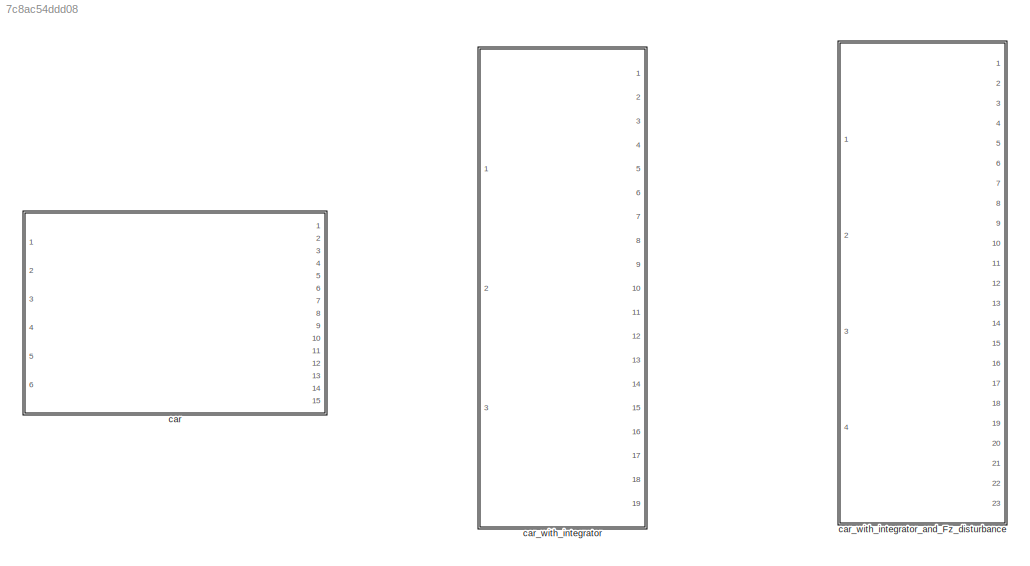
MODEL slx_7c8ac54ddd08
KIND library
CONFIG AbsTol = auto
CONFIG EnableMultiTasking = off
CONFIG FixedStep = auto
CONFIG MaxStep = auto
CONFIG MinStep = auto
CONFIG RelTol = 1e-3
CONFIG SampleTimeConstraint = Unconstrained
CONFIG Solver = VariableStepAuto
CONFIG SolverName = VariableStepAuto
CONFIG StartTime = 0.0
CONFIG StopTime = 10.0
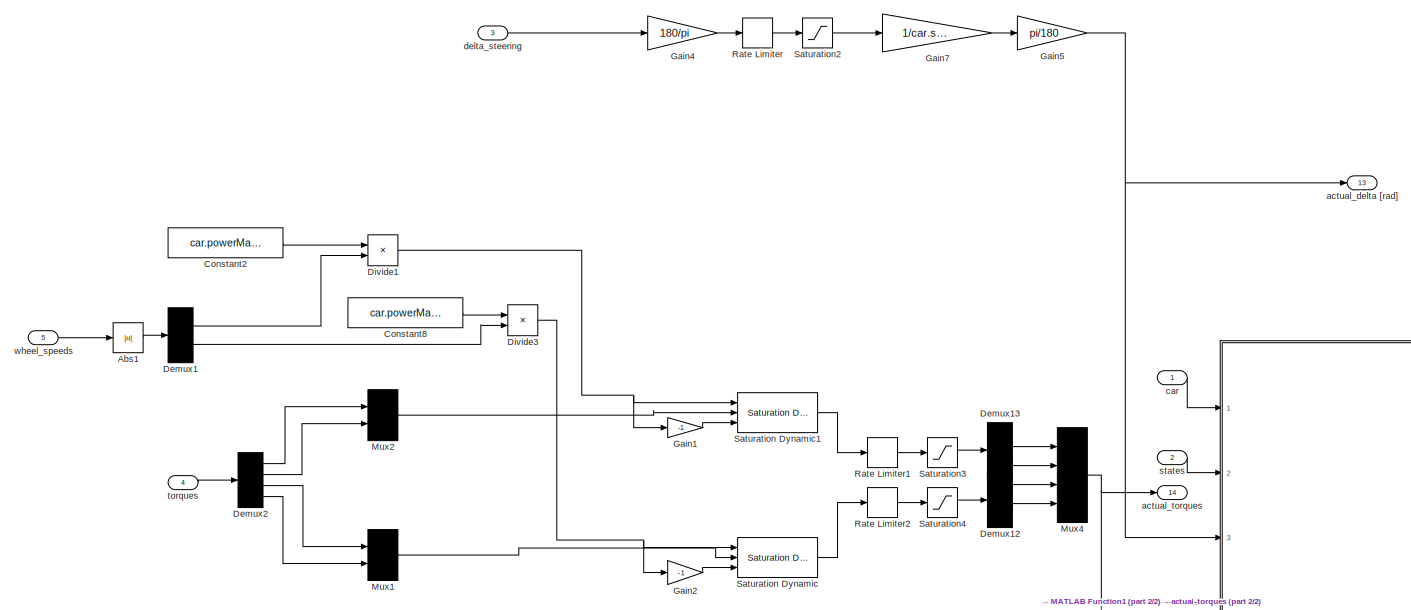
[diagram: car - part 1/2, center side, full height]
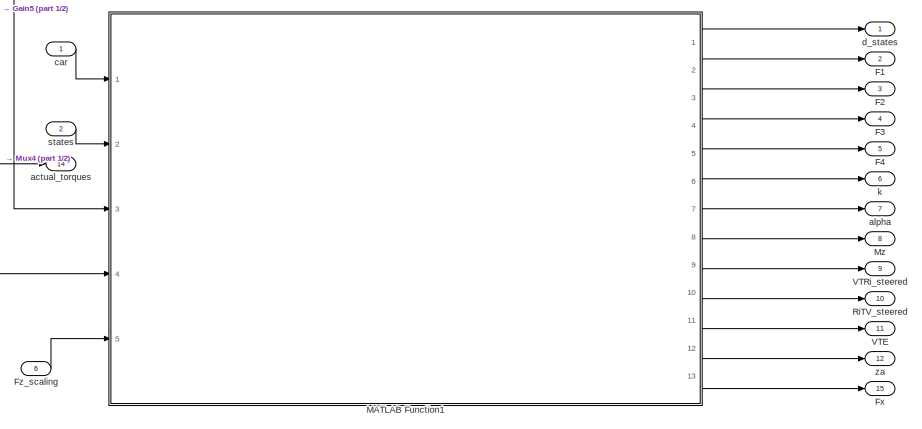
[diagram: car - part 2/2, bottom right region]
BLOCK [SubSystem] car
  Ports = [6, 15]
  RequestExecContextInheritance = off
BLOCK [Abs] car/Abs1
  SaturateOnIntegerOverflow = off
BLOCK [Constant] car/Constant2
  Value = car.powerMaxF
BLOCK [Constant] car/Constant8
  Value = car.powerMaxR
BLOCK [Demux] car/Demux1
  DisplayOption = bar
  Outputs = 2
  Ports = [1, 2]
BLOCK [Demux] car/Demux12
  DisplayOption = bar
  Outputs = 2
  Ports = [1, 2]
BLOCK [Demux] car/Demux13
  DisplayOption = bar
  Outputs = 2
  Ports = [1, 2]
BLOCK [Demux] car/Demux2
  DisplayOption = bar
  Ports = [1, 4]
BLOCK [Product] car/Divide1
  InputSameDT = off
  Inputs = */
  OutDataTypeStr = Inherit: Inherit via internal rule
  Ports = [2, 1]
  RndMeth = Floor
  SaturateOnIntegerOverflow = off
BLOCK [Product] car/Divide3
  InputSameDT = off
  Inputs = */
  OutDataTypeStr = Inherit: Inherit via internal rule
  Ports = [2, 1]
  RndMeth = Floor
  SaturateOnIntegerOverflow = off
BLOCK [Outport] car/F1
  IconDisplay = Port number
  Port = 2
  VectorParamsAs1DForOutWhenUnconnected = off
BLOCK [Outport] car/F2
  IconDisplay = Port number
  Port = 3
  VectorParamsAs1DForOutWhenUnconnected = off
BLOCK [Outport] car/F3
  IconDisplay = Port number
  Port = 4
  VectorParamsAs1DForOutWhenUnconnected = off
BLOCK [Outport] car/F4
  IconDisplay = Port number
  Port = 5
  VectorParamsAs1DForOutWhenUnconnected = off
BLOCK [Outport] car/Fx
  IconDisplay = Port number
  Port = 15
  VectorParamsAs1DForOutWhenUnconnected = off
BLOCK [Inport] car/Fz_scaling
  IconDisplay = Port number
  Port = 6
BLOCK [Gain] car/Gain1
  Gain = -1
  OutDataTypeStr = Inherit: Inherit via internal rule
  ParamDataTypeStr = Inherit: Inherit via internal rule
  SaturateOnIntegerOverflow = off
BLOCK [Gain] car/Gain2
  Gain = -1
  OutDataTypeStr = Inherit: Inherit via internal rule
  ParamDataTypeStr = Inherit: Inherit via internal rule
  SaturateOnIntegerOverflow = off
BLOCK [Gain] car/Gain4
  Gain = 180/pi
  OutDataTypeStr = Inherit: Inherit via internal rule
  ParamDataTypeStr = Inherit: Inherit via internal rule
  SaturateOnIntegerOverflow = off
BLOCK [Gain] car/Gain5
  Gain = pi/180
  OutDataTypeStr = Inherit: Inherit via internal rule
  ParamDataTypeStr = Inherit: Inherit via internal rule
  SaturateOnIntegerOverflow = off
BLOCK [Gain] car/Gain7
  Gain = 1/car.steerGain
  OutDataTypeStr = Inherit: Inherit via internal rule
  ParamDataTypeStr = Inherit: Inherit via internal rule
  SaturateOnIntegerOverflow = off
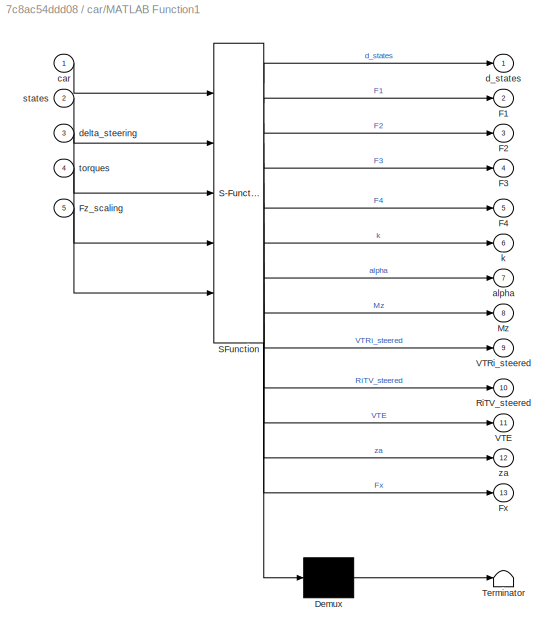
BLOCK [SubSystem] car/MATLAB Function1
  ErrorFcn = Stateflow.Translate.translate
  PermitHierarchicalResolution = ExplicitOnly
  Ports = [5, 13]
  RequestExecContextInheritance = off
  SFBlockType = MATLAB Function
  TreatAsAtomicUnit = on
BLOCK [Demux] car/MATLAB Function1/ Demux 
  Outputs = 1
  Ports = [1, 1]
BLOCK [S-Function] car/MATLAB Function1/ SFunction 
  EnableBusSupport = off
  FunctionName = sf_sfun
  PortCounts = [5 14]
  Ports = [5, 14]
  SFcnIsStateOwnerBlock = off
  SFunctionDeploymentMode = off
  Tag = Stateflow S-Function 2
BLOCK [Terminator] car/MATLAB Function1/ Terminator 
BLOCK [Outport] car/MATLAB Function1/F1
  IconDisplay = Port number
  Port = 2
  VectorParamsAs1DForOutWhenUnconnected = off
BLOCK [Outport] car/MATLAB Function1/F2
  IconDisplay = Port number
  Port = 3
  VectorParamsAs1DForOutWhenUnconnected = off
BLOCK [Outport] car/MATLAB Function1/F3
  IconDisplay = Port number
  Port = 4
  VectorParamsAs1DForOutWhenUnconnected = off
BLOCK [Outport] car/MATLAB Function1/F4
  IconDisplay = Port number
  Port = 5
  VectorParamsAs1DForOutWhenUnconnected = off
BLOCK [Outport] car/MATLAB Function1/Fx
  IconDisplay = Port number
  Port = 13
BLOCK [Inport] car/MATLAB Function1/Fz_scaling
  IconDisplay = Port number
  Port = 5
BLOCK [Outport] car/MATLAB Function1/Mz
  IconDisplay = Port number
  Port = 8
  VectorParamsAs1DForOutWhenUnconnected = off
BLOCK [Outport] car/MATLAB Function1/RiTV_steered
  IconDisplay = Port number
  Port = 10
  VectorParamsAs1DForOutWhenUnconnected = off
BLOCK [Outport] car/MATLAB Function1/VTE
  IconDisplay = Port number
  Port = 11
  VectorParamsAs1DForOutWhenUnconnected = off
BLOCK [Outport] car/MATLAB Function1/VTRi_steered
  IconDisplay = Port number
  Port = 9
  VectorParamsAs1DForOutWhenUnconnected = off
BLOCK [Outport] car/MATLAB Function1/alpha
  IconDisplay = Port number
  Port = 7
  VectorParamsAs1DForOutWhenUnconnected = off
BLOCK [Inport] car/MATLAB Function1/car
  IconDisplay = Port number
BLOCK [Outport] car/MATLAB Function1/d_states
  IconDisplay = Port number
  VectorParamsAs1DForOutWhenUnconnected = off
BLOCK [Inport] car/MATLAB Function1/delta_steering
  IconDisplay = Port number
  Port = 3
BLOCK [Outport] car/MATLAB Function1/k
  IconDisplay = Port number
  Port = 6
  VectorParamsAs1DForOutWhenUnconnected = off
BLOCK [Inport] car/MATLAB Function1/states
  IconDisplay = Port number
  Port = 2
BLOCK [Inport] car/MATLAB Function1/torques
  IconDisplay = Port number
  Port = 4
BLOCK [Outport] car/MATLAB Function1/za
  IconDisplay = Port number
  Port = 12
  VectorParamsAs1DForOutWhenUnconnected = off
BLOCK [Mux] car/Mux1
  DisplayOption = bar
  Inputs = 2
  Ports = [2, 1]
BLOCK [Mux] car/Mux2
  DisplayOption = bar
  Inputs = 2
  Ports = [2, 1]
BLOCK [Mux] car/Mux4
  DisplayOption = bar
  Ports = [4, 1]
BLOCK [Outport] car/Mz
  IconDisplay = Port number
  Port = 8
  VectorParamsAs1DForOutWhenUnconnected = off
BLOCK [RateLimiter] car/Rate Limiter
  FallingSlewLimit = -car.steerRate
  RisingSlewLimit = car.steerRate
  SampleTimeMode = inherited
BLOCK [RateLimiter] car/Rate Limiter1
  FallingSlewLimit = -car.torqueRate
  RisingSlewLimit = car.torqueRate
  SampleTimeMode = inherited
BLOCK [RateLimiter] car/Rate Limiter2
  FallingSlewLimit = -car.torqueRate
  RisingSlewLimit = car.torqueRate
  SampleTimeMode = inherited
BLOCK [Outport] car/RiTV_steered
  IconDisplay = Port number
  Port = 10
  VectorParamsAs1DForOutWhenUnconnected = off
BLOCK [Reference] car/Saturation Dynamic  REF=simulink/Discontinuities/Saturation
Dynamic
  Ports = [3, 1]
  SourceBlock = simulink/Discontinuities/Saturation\nDynamic
  SourceProductBaseCode = SL
  SourceProductName = Simulink
  SourceType = Saturation Dynamic
BLOCK [Reference] car/Saturation Dynamic1  REF=simulink/Discontinuities/Saturation
Dynamic
  Ports = [3, 1]
  SourceBlock = simulink/Discontinuities/Saturation\nDynamic
  SourceProductBaseCode = SL
  SourceProductName = Simulink
  SourceType = Saturation Dynamic
BLOCK [Saturate] car/Saturation2
  InputPortMap = u0
  LowerLimit = -car.steerMaxDeg
  Ports = [1, 1]
  UpperLimit = car.steerMaxDeg
BLOCK [Saturate] car/Saturation3
  InputPortMap = u0
  LowerLimit = -car.torqueMaxF
  Ports = [1, 1]
  UpperLimit = car.torqueMaxF
BLOCK [Saturate] car/Saturation4
  InputPortMap = u0
  LowerLimit = -car.torqueMaxR
  Ports = [1, 1]
  UpperLimit = car.torqueMaxR
BLOCK [Outport] car/VTE
  IconDisplay = Port number
  Port = 11
  VectorParamsAs1DForOutWhenUnconnected = off
BLOCK [Outport] car/VTRi_steered
  IconDisplay = Port number
  Port = 9
  VectorParamsAs1DForOutWhenUnconnected = off
BLOCK [Outport] car/actual_delta [rad]
  IconDisplay = Port number
  Port = 13
  VectorParamsAs1DForOutWhenUnconnected = off
BLOCK [Outport] car/actual_torques
  IconDisplay = Port number
  Port = 14
  VectorParamsAs1DForOutWhenUnconnected = off
BLOCK [Outport] car/alpha
  IconDisplay = Port number
  Port = 7
  VectorParamsAs1DForOutWhenUnconnected = off
BLOCK [Inport] car/car
  IconDisplay = Port number
BLOCK [Outport] car/d_states
  IconDisplay = Port number
  VectorParamsAs1DForOutWhenUnconnected = off
BLOCK [Inport] car/delta_steering
  IconDisplay = Port number
  Port = 3
  PortDimensions = 4
BLOCK [Outport] car/k
  IconDisplay = Port number
  Port = 6
  VectorParamsAs1DForOutWhenUnconnected = off
BLOCK [Inport] car/states
  IconDisplay = Port number
  Port = 2
BLOCK [Inport] car/torques
  IconDisplay = Port number
  Port = 4
BLOCK [Inport] car/wheel_speeds
  IconDisplay = Port number
  Port = 5
BLOCK [Outport] car/za
  IconDisplay = Port number
  Port = 12
  VectorParamsAs1DForOutWhenUnconnected = off
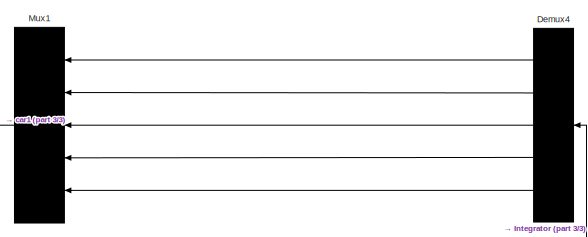
[diagram: car_with_integrator - part 1/3, top left region]
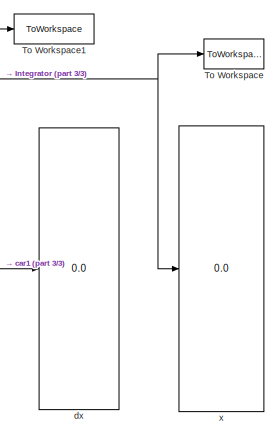
[diagram: car_with_integrator - part 2/3, middle right region]
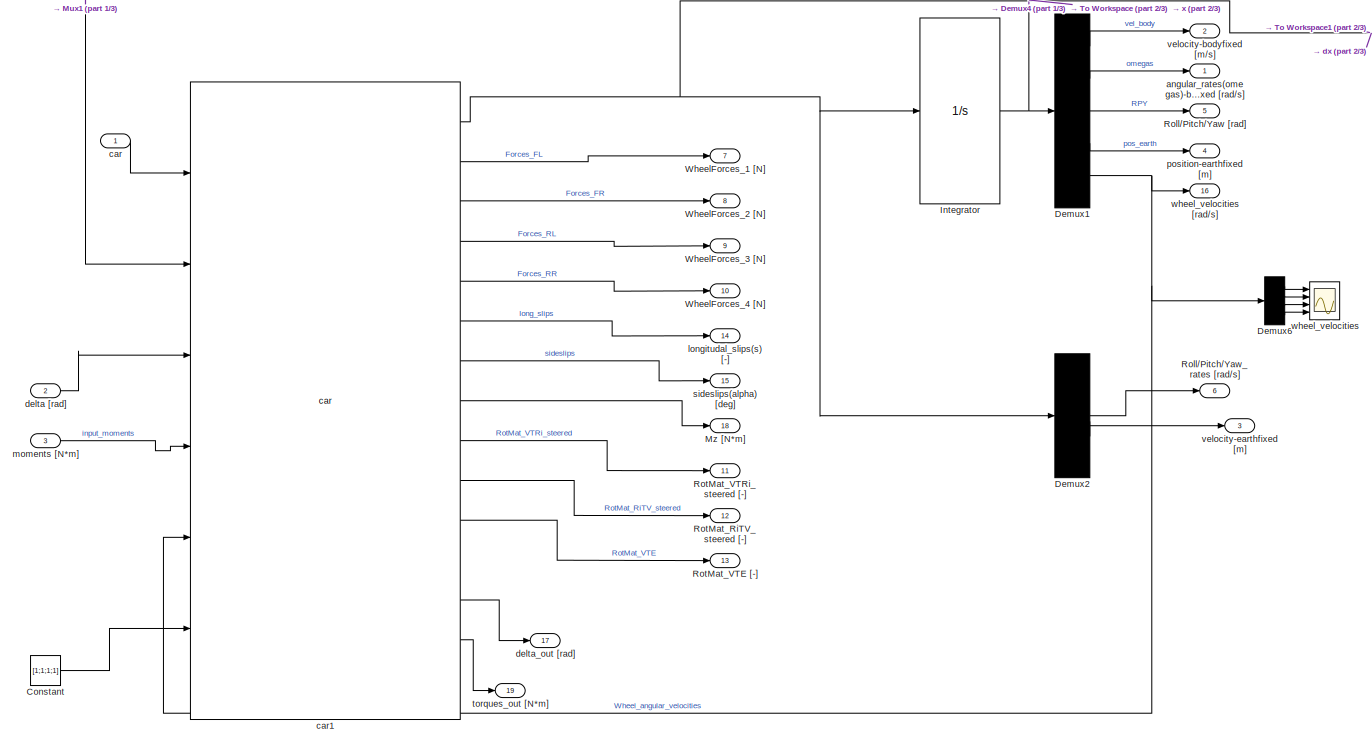
[diagram: car_with_integrator - part 3/3, full width, middle band]
BLOCK [SubSystem] car_with_integrator
  Ports = [3, 19]
  RequestExecContextInheritance = off
BLOCK [Constant] car_with_integrator/Constant
  Value = [1;1;1;1]
BLOCK [Demux] car_with_integrator/Demux1
  DisplayOption = bar
  Outputs = [3,3,3,3,4]
  Ports = [1, 5]
BLOCK [Demux] car_with_integrator/Demux2
  DisplayOption = bar
  Outputs = [3,3,3,3,4]
  Ports = [1, 5]
BLOCK [Demux] car_with_integrator/Demux4
  DisplayOption = bar
  Outputs = [3,3,3,3,4]
  Ports = [1, 5]
BLOCK [Demux] car_with_integrator/Demux6
  DisplayOption = bar
  Ports = [1, 4]
BLOCK [Integrator] car_with_integrator/Integrator
  InitialCondition = car_init(1:16)
  Ports = [1, 1]
BLOCK [Mux] car_with_integrator/Mux1
  DisplayOption = bar
  Inputs = 5
  Ports = [5, 1]
BLOCK [Outport] car_with_integrator/Mz [N*m]
  IconDisplay = Port number
  Port = 18
  VectorParamsAs1DForOutWhenUnconnected = off
BLOCK [Outport] car_with_integrator/Roll//Pitch//Yaw [rad]
  IconDisplay = Port number
  Port = 5
  PortDimensions = 3
  VectorParamsAs1DForOutWhenUnconnected = off
BLOCK [Outport] car_with_integrator/Roll//Pitch//Yaw_rates [rad//s]
  IconDisplay = Port number
  Port = 6
  PortDimensions = 3
  VectorParamsAs1DForOutWhenUnconnected = off
BLOCK [Outport] car_with_integrator/RotMat_RiTV_steered [-]
  IconDisplay = Port number
  Port = 12
  VectorParamsAs1DForOutWhenUnconnected = off
BLOCK [Outport] car_with_integrator/RotMat_VTE [-]
  IconDisplay = Port number
  Port = 13
  VectorParamsAs1DForOutWhenUnconnected = off
BLOCK [Outport] car_with_integrator/RotMat_VTRi_steered [-]
  IconDisplay = Port number
  Port = 11
  VectorParamsAs1DForOutWhenUnconnected = off
BLOCK [ToWorkspace] car_with_integrator/To Workspace
  FixptAsFi = on
  MaxDataPoints = inf
  Ports = [1]
  SampleTime = -1
  VariableName = simout_states
BLOCK [ToWorkspace] car_with_integrator/To Workspace1
  FixptAsFi = on
  MaxDataPoints = inf
  Ports = [1]
  SampleTime = -1
  VariableName = simout_states_der
BLOCK [Outport] car_with_integrator/WheelForces_1 [N]
  IconDisplay = Port number
  Port = 7
  VectorParamsAs1DForOutWhenUnconnected = off
BLOCK [Outport] car_with_integrator/WheelForces_2 [N]
  IconDisplay = Port number
  Port = 8
  VectorParamsAs1DForOutWhenUnconnected = off
BLOCK [Outport] car_with_integrator/WheelForces_3 [N]
  IconDisplay = Port number
  Port = 9
  VectorParamsAs1DForOutWhenUnconnected = off
BLOCK [Outport] car_with_integrator/WheelForces_4 [N]
  IconDisplay = Port number
  Port = 10
  VectorParamsAs1DForOutWhenUnconnected = off
BLOCK [Outport] car_with_integrator/angular_rates(omegas)-bodyfixed [rad//s]
  IconDisplay = Port number
  PortDimensions = 3
  VectorParamsAs1DForOutWhenUnconnected = off
BLOCK [Inport] car_with_integrator/car
  IconDisplay = Port number
BLOCK [Reference] car_with_integrator/car1  REF=$bdroot/car
  Ports = [6, 15]
  SourceBlock = $bdroot/car
  SourceType = SubSystem
BLOCK [Inport] car_with_integrator/delta [rad]
  IconDisplay = Port number
  Port = 2
  Unit = rad
BLOCK [Outport] car_with_integrator/delta_out [rad]
  IconDisplay = Port number
  Port = 17
  VectorParamsAs1DForOutWhenUnconnected = off
BLOCK [Display] car_with_integrator/dx
  Decimation = 1
  Ports = [1]
BLOCK [Outport] car_with_integrator/longitudal_slips(s) [-]
  IconDisplay = Port number
  Port = 14
  VectorParamsAs1DForOutWhenUnconnected = off
BLOCK [Inport] car_with_integrator/moments [N*m]
  IconDisplay = Port number
  Port = 3
  Unit = N*m
BLOCK [Outport] car_with_integrator/position-earthfixed [m]
  IconDisplay = Port number
  Port = 4
  PortDimensions = 3
  VectorParamsAs1DForOutWhenUnconnected = off
BLOCK [Outport] car_with_integrator/sideslips(alpha) [deg]
  IconDisplay = Port number
  Port = 15
  VectorParamsAs1DForOutWhenUnconnected = off
BLOCK [Outport] car_with_integrator/torques_out [N*m]
  IconDisplay = Port number
  Port = 19
  VectorParamsAs1DForOutWhenUnconnected = off
BLOCK [Outport] car_with_integrator/velocity-bodyfixed [m//s]
  IconDisplay = Port number
  Port = 2
  PortDimensions = 3
  VectorParamsAs1DForOutWhenUnconnected = off
BLOCK [Outport] car_with_integrator/velocity-earthfixed [m]
  IconDisplay = Port number
  Port = 3
  PortDimensions = 3
  VectorParamsAs1DForOutWhenUnconnected = off
BLOCK [Scope] car_with_integrator/wheel_velocities
  Floating = off
  NumInputPorts = 4
  Ports = [4]
  ScopeSpecificationString = Simulink.scopes.TimeScopeBlockCfg('CurrentConfiguration', extmgr.ConfigurationSet(extmgr.Configuration('Core','General UI',true),extmgr.Configuration('Core','Source UI',true),extmgr.Configuration('Sources','WiredSimulink',true,'DataLoggingVariableName','ScopeData1'),extmgr.Configuration('Visuals','Time Domain',true,'SerializedDisplays',{struct('MinYLimReal','-33.01577','MaxYLimReal','1713.81653','...<+1484ch>
BLOCK [Outport] car_with_integrator/wheel_velocities [rad//s]
  IconDisplay = Port number
  Port = 16
  VectorParamsAs1DForOutWhenUnconnected = off
BLOCK [Display] car_with_integrator/x
  Decimation = 1
  Ports = [1]
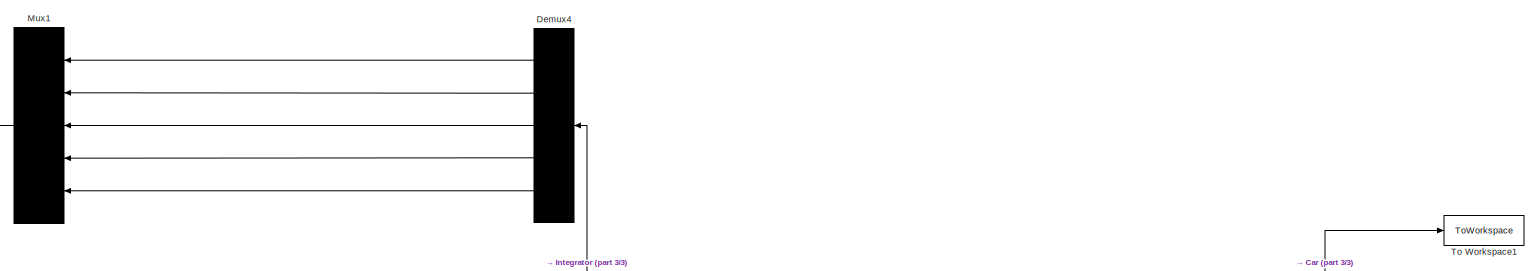
[diagram: car_with_integrator_and_Fz_disturbance - part 1/3, full width, top band]
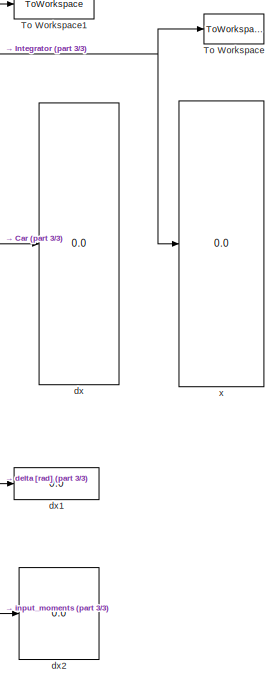
[diagram: car_with_integrator_and_Fz_disturbance - part 2/3, middle right region]
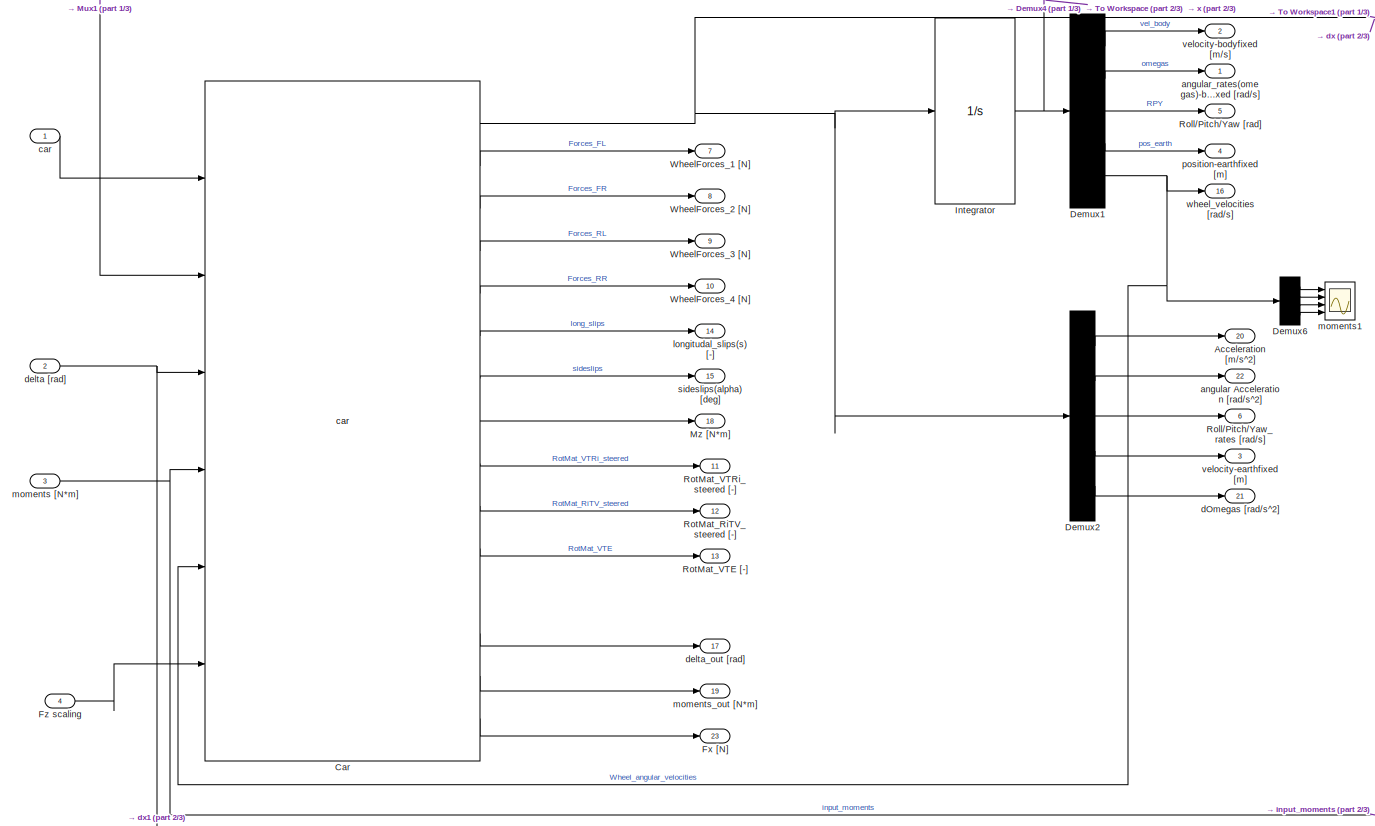
[diagram: car_with_integrator_and_Fz_disturbance - part 3/3, full width, middle band]
BLOCK [SubSystem] car_with_integrator_and_Fz_disturbance
  Ports = [4, 23]
  RequestExecContextInheritance = off
BLOCK [Outport] car_with_integrator_and_Fz_disturbance/Acceleration [m//s^2]
  IconDisplay = Port number
  Port = 20
  PortDimensions = 3
  VectorParamsAs1DForOutWhenUnconnected = off
BLOCK [Reference] car_with_integrator_and_Fz_disturbance/Car  REF=$bdroot/car
  Ports = [6, 15]
  SourceBlock = $bdroot/car
  SourceType = SubSystem
BLOCK [Demux] car_with_integrator_and_Fz_disturbance/Demux1
  DisplayOption = bar
  Outputs = [3,3,3,3,4]
  Ports = [1, 5]
BLOCK [Demux] car_with_integrator_and_Fz_disturbance/Demux2
  DisplayOption = bar
  Outputs = [3,3,3,3,4]
  Ports = [1, 5]
BLOCK [Demux] car_with_integrator_and_Fz_disturbance/Demux4
  DisplayOption = bar
  Outputs = [3,3,3,3,4]
  Ports = [1, 5]
BLOCK [Demux] car_with_integrator_and_Fz_disturbance/Demux6
  DisplayOption = bar
  Ports = [1, 4]
BLOCK [Outport] car_with_integrator_and_Fz_disturbance/Fx [N]
  IconDisplay = Port number
  Port = 23
  VectorParamsAs1DForOutWhenUnconnected = off
BLOCK [Inport] car_with_integrator_and_Fz_disturbance/Fz scaling
  IconDisplay = Port number
  Port = 4
BLOCK [Integrator] car_with_integrator_and_Fz_disturbance/Integrator
  InitialCondition = car_init(1:16)
  Ports = [1, 1]
BLOCK [Mux] car_with_integrator_and_Fz_disturbance/Mux1
  DisplayOption = bar
  Inputs = 5
  Ports = [5, 1]
BLOCK [Outport] car_with_integrator_and_Fz_disturbance/Mz [N*m]
  IconDisplay = Port number
  Port = 18
  VectorParamsAs1DForOutWhenUnconnected = off
BLOCK [Outport] car_with_integrator_and_Fz_disturbance/Roll//Pitch//Yaw [rad]
  IconDisplay = Port number
  Port = 5
  PortDimensions = 3
  VectorParamsAs1DForOutWhenUnconnected = off
BLOCK [Outport] car_with_integrator_and_Fz_disturbance/Roll//Pitch//Yaw_rates [rad//s]
  IconDisplay = Port number
  Port = 6
  PortDimensions = 3
  VectorParamsAs1DForOutWhenUnconnected = off
BLOCK [Outport] car_with_integrator_and_Fz_disturbance/RotMat_RiTV_steered [-]
  IconDisplay = Port number
  Port = 12
  VectorParamsAs1DForOutWhenUnconnected = off
BLOCK [Outport] car_with_integrator_and_Fz_disturbance/RotMat_VTE [-]
  IconDisplay = Port number
  Port = 13
  VectorParamsAs1DForOutWhenUnconnected = off
BLOCK [Outport] car_with_integrator_and_Fz_disturbance/RotMat_VTRi_steered [-]
  IconDisplay = Port number
  Port = 11
  VectorParamsAs1DForOutWhenUnconnected = off
BLOCK [ToWorkspace] car_with_integrator_and_Fz_disturbance/To Workspace
  FixptAsFi = on
  MaxDataPoints = inf
  Ports = [1]
  SampleTime = -1
  VariableName = simout_states
BLOCK [ToWorkspace] car_with_integrator_and_Fz_disturbance/To Workspace1
  FixptAsFi = on
  MaxDataPoints = inf
  Ports = [1]
  SampleTime = -1
  VariableName = simout_states_der
BLOCK [Outport] car_with_integrator_and_Fz_disturbance/WheelForces_1 [N]
  IconDisplay = Port number
  Port = 7
  VectorParamsAs1DForOutWhenUnconnected = off
BLOCK [Outport] car_with_integrator_and_Fz_disturbance/WheelForces_2 [N]
  IconDisplay = Port number
  Port = 8
  VectorParamsAs1DForOutWhenUnconnected = off
BLOCK [Outport] car_with_integrator_and_Fz_disturbance/WheelForces_3 [N]
  IconDisplay = Port number
  Port = 9
  VectorParamsAs1DForOutWhenUnconnected = off
BLOCK [Outport] car_with_integrator_and_Fz_disturbance/WheelForces_4 [N]
  IconDisplay = Port number
  Port = 10
  VectorParamsAs1DForOutWhenUnconnected = off
BLOCK [Outport] car_with_integrator_and_Fz_disturbance/angular Acceleration [rad//s^2]
  IconDisplay = Port number
  Port = 22
  PortDimensions = 3
  VectorParamsAs1DForOutWhenUnconnected = off
BLOCK [Outport] car_with_integrator_and_Fz_disturbance/angular_rates(omegas)-bodyfixed [rad//s]
  IconDisplay = Port number
  PortDimensions = 3
  VectorParamsAs1DForOutWhenUnconnected = off
BLOCK [Inport] car_with_integrator_and_Fz_disturbance/car
  IconDisplay = Port number
BLOCK [Outport] car_with_integrator_and_Fz_disturbance/dOmegas [rad//s^2]
  IconDisplay = Port number
  Port = 21
  PortDimensions = 4
  VectorParamsAs1DForOutWhenUnconnected = off
BLOCK [Inport] car_with_integrator_and_Fz_disturbance/delta [rad]
  IconDisplay = Port number
  Port = 2
  Unit = rad
BLOCK [Outport] car_with_integrator_and_Fz_disturbance/delta_out [rad]
  IconDisplay = Port number
  Port = 17
  VectorParamsAs1DForOutWhenUnconnected = off
BLOCK [Display] car_with_integrator_and_Fz_disturbance/dx
  Decimation = 1
  Ports = [1]
BLOCK [Display] car_with_integrator_and_Fz_disturbance/dx1
  Decimation = 1
  Ports = [1]
BLOCK [Display] car_with_integrator_and_Fz_disturbance/dx2
  Decimation = 1
  Ports = [1]
BLOCK [Outport] car_with_integrator_and_Fz_disturbance/longitudal_slips(s) [-]
  IconDisplay = Port number
  Port = 14
  VectorParamsAs1DForOutWhenUnconnected = off
BLOCK [Inport] car_with_integrator_and_Fz_disturbance/moments [N*m]
  IconDisplay = Port number
  Port = 3
  Unit = N*m
BLOCK [Scope] car_with_integrator_and_Fz_disturbance/moments1
  Floating = off
  NumInputPorts = 4
  Ports = [4]
  ScopeSpecificationString = Simulink.scopes.TimeScopeBlockCfg('CurrentConfiguration', extmgr.ConfigurationSet(extmgr.Configuration('Core','General UI',true),extmgr.Configuration('Core','Source UI',true),extmgr.Configuration('Sources','WiredSimulink',true,'DataLoggingVariableName','ScopeData1'),extmgr.Configuration('Visuals','Time Domain',true,'SerializedDisplays',{struct('MinYLimReal','-33.01577','MaxYLimReal','1713.81653','...<+1484ch>
BLOCK [Outport] car_with_integrator_and_Fz_disturbance/moments_out [N*m]
  IconDisplay = Port number
  Port = 19
  VectorParamsAs1DForOutWhenUnconnected = off
BLOCK [Outport] car_with_integrator_and_Fz_disturbance/position-earthfixed [m]
  IconDisplay = Port number
  Port = 4
  PortDimensions = 3
  VectorParamsAs1DForOutWhenUnconnected = off
BLOCK [Outport] car_with_integrator_and_Fz_disturbance/sideslips(alpha) [deg]
  IconDisplay = Port number
  Port = 15
  VectorParamsAs1DForOutWhenUnconnected = off
BLOCK [Outport] car_with_integrator_and_Fz_disturbance/velocity-bodyfixed [m//s]
  IconDisplay = Port number
  Port = 2
  PortDimensions = 3
  VectorParamsAs1DForOutWhenUnconnected = off
BLOCK [Outport] car_with_integrator_and_Fz_disturbance/velocity-earthfixed [m]
  IconDisplay = Port number
  Port = 3
  PortDimensions = 3
  VectorParamsAs1DForOutWhenUnconnected = off
BLOCK [Outport] car_with_integrator_and_Fz_disturbance/wheel_velocities [rad//s]
  IconDisplay = Port number
  Port = 16
  VectorParamsAs1DForOutWhenUnconnected = off
BLOCK [Display] car_with_integrator_and_Fz_disturbance/x
  Decimation = 1
  Ports = [1]
LINE car/Abs1:1 -> car/Demux1:1
LINE car/Constant2:1 -> car/Divide1:1
LINE car/Constant8:1 -> car/Divide3:1
LINE car/Demux12:1 -> car/Mux4:3
LINE car/Demux12:2 -> car/Mux4:4
LINE car/Demux13:1 -> car/Mux4:1
LINE car/Demux13:2 -> car/Mux4:2
LINE car/Demux1:1 -> car/Divide1:2
LINE car/Demux1:2 -> car/Divide3:2
LINE car/Demux2:1 -> car/Mux2:1
LINE car/Demux2:2 -> car/Mux2:2
LINE car/Demux2:3 -> car/Mux1:1
LINE car/Demux2:4 -> car/Mux1:2
NET car/Divide1:1 -> car/Gain1:1, car/Saturation Dynamic1:1
NET car/Divide3:1 -> car/Gain2:1, car/Saturation Dynamic:1
LINE car/Fz_scaling:1 -> car/MATLAB Function1:5
LINE car/Gain1:1 -> car/Saturation Dynamic1:3
LINE car/Gain2:1 -> car/Saturation Dynamic:3
LINE car/Gain4:1 -> car/Rate Limiter:1
NET car/Gain5:1 -> car/MATLAB Function1:3, car/actual_delta [rad]:1
LINE car/Gain7:1 -> car/Gain5:1
LINE car/MATLAB Function1:1 -> car/d_states:1
LINE car/MATLAB Function1:10 -> car/RiTV_steered:1
LINE car/MATLAB Function1:11 -> car/VTE:1
LINE car/MATLAB Function1:12 -> car/za:1
LINE car/MATLAB Function1:13 -> car/Fx:1
LINE car/MATLAB Function1:2 -> car/F1:1
LINE car/MATLAB Function1:3 -> car/F2:1
LINE car/MATLAB Function1:4 -> car/F3:1
LINE car/MATLAB Function1:5 -> car/F4:1
LINE car/MATLAB Function1:6 -> car/k:1
LINE car/MATLAB Function1:7 -> car/alpha:1
LINE car/MATLAB Function1:8 -> car/Mz:1
LINE car/MATLAB Function1:9 -> car/VTRi_steered:1
LINE car/Mux1:1 -> car/Saturation Dynamic:2
LINE car/Mux2:1 -> car/Saturation Dynamic1:2
NET car/Mux4:1 -> car/MATLAB Function1:4, car/actual_torques:1
LINE car/Rate Limiter1:1 -> car/Saturation3:1
LINE car/Rate Limiter2:1 -> car/Saturation4:1
LINE car/Rate Limiter:1 -> car/Saturation2:1
LINE car/Saturation Dynamic1:1 -> car/Rate Limiter1:1
LINE car/Saturation Dynamic:1 -> car/Rate Limiter2:1
LINE car/Saturation2:1 -> car/Gain7:1
LINE car/Saturation3:1 -> car/Demux13:1
LINE car/Saturation4:1 -> car/Demux12:1
LINE car/car:1 -> car/MATLAB Function1:1
LINE car/delta_steering:1 -> car/Gain4:1
LINE car/states:1 -> car/MATLAB Function1:2
LINE car/torques:1 -> car/Demux2:1
LINE car/wheel_speeds:1 -> car/Abs1:1
LINE car_with_integrator/Constant:1 -> car_with_integrator/car1:6
LINE car_with_integrator/Demux1:1 -> car_with_integrator/velocity-bodyfixed [m//s]:1
LINE car_with_integrator/Demux1:2 -> car_with_integrator/angular_rates(omegas)-bodyfixed [rad//s]:1
LINE car_with_integrator/Demux1:3 -> car_with_integrator/Roll//Pitch//Yaw [rad]:1
LINE car_with_integrator/Demux1:4 -> car_with_integrator/position-earthfixed [m]:1
NET car_with_integrator/Demux1:5 -> car_with_integrator/Demux6:1, car_with_integrator/car1:5, car_with_integrator/wheel_velocities [rad//s]:1
LINE car_with_integrator/Demux2:3 -> car_with_integrator/Roll//Pitch//Yaw_rates [rad//s]:1
LINE car_with_integrator/Demux2:4 -> car_with_integrator/velocity-earthfixed [m]:1
LINE car_with_integrator/Demux4:1 -> car_with_integrator/Mux1:1
LINE car_with_integrator/Demux4:2 -> car_with_integrator/Mux1:2
LINE car_with_integrator/Demux4:3 -> car_with_integrator/Mux1:3
LINE car_with_integrator/Demux4:4 -> car_with_integrator/Mux1:4
LINE car_with_integrator/Demux4:5 -> car_with_integrator/Mux1:5
LINE car_with_integrator/Demux6:1 -> car_with_integrator/wheel_velocities:1
LINE car_with_integrator/Demux6:2 -> car_with_integrator/wheel_velocities:2
LINE car_with_integrator/Demux6:3 -> car_with_integrator/wheel_velocities:3
LINE car_with_integrator/Demux6:4 -> car_with_integrator/wheel_velocities:4
NET car_with_integrator/Integrator:1 -> car_with_integrator/Demux1:1, car_with_integrator/Demux4:1, car_with_integrator/To Workspace:1, car_with_integrator/x:1
LINE car_with_integrator/Mux1:1 -> car_with_integrator/car1:2
NET car_with_integrator/car1:1 -> car_with_integrator/Demux2:1, car_with_integrator/Integrator:1, car_with_integrator/To Workspace1:1, car_with_integrator/dx:1
LINE car_with_integrator/car1:10 -> car_with_integrator/RotMat_RiTV_steered [-]:1
LINE car_with_integrator/car1:11 -> car_with_integrator/RotMat_VTE [-]:1
LINE car_with_integrator/car1:13 -> car_with_integrator/delta_out [rad]:1
LINE car_with_integrator/car1:14 -> car_with_integrator/torques_out [N*m]:1
LINE car_with_integrator/car1:2 -> car_with_integrator/WheelForces_1 [N]:1
LINE car_with_integrator/car1:3 -> car_with_integrator/WheelForces_2 [N]:1
LINE car_with_integrator/car1:4 -> car_with_integrator/WheelForces_3 [N]:1
LINE car_with_integrator/car1:5 -> car_with_integrator/WheelForces_4 [N]:1
LINE car_with_integrator/car1:6 -> car_with_integrator/longitudal_slips(s) [-]:1
LINE car_with_integrator/car1:7 -> car_with_integrator/sideslips(alpha) [deg]:1
LINE car_with_integrator/car1:8 -> car_with_integrator/Mz [N*m]:1
LINE car_with_integrator/car1:9 -> car_with_integrator/RotMat_VTRi_steered [-]:1
LINE car_with_integrator/car:1 -> car_with_integrator/car1:1
LINE car_with_integrator/delta [rad]:1 -> car_with_integrator/car1:3
LINE car_with_integrator/moments [N*m]:1 -> car_with_integrator/car1:4
NET car_with_integrator_and_Fz_disturbance/Car:1 -> car_with_integrator_and_Fz_disturbance/Demux2:1, car_with_integrator_and_Fz_disturbance/Integrator:1, car_with_integrator_and_Fz_disturbance/To Workspace1:1, car_with_integrator_and_Fz_disturbance/dx:1
LINE car_with_integrator_and_Fz_disturbance/Car:10 -> car_with_integrator_and_Fz_disturbance/RotMat_RiTV_steered [-]:1
LINE car_with_integrator_and_Fz_disturbance/Car:11 -> car_with_integrator_and_Fz_disturbance/RotMat_VTE [-]:1
LINE car_with_integrator_and_Fz_disturbance/Car:13 -> car_with_integrator_and_Fz_disturbance/delta_out [rad]:1
LINE car_with_integrator_and_Fz_disturbance/Car:14 -> car_with_integrator_and_Fz_disturbance/moments_out [N*m]:1
LINE car_with_integrator_and_Fz_disturbance/Car:15 -> car_with_integrator_and_Fz_disturbance/Fx [N]:1
LINE car_with_integrator_and_Fz_disturbance/Car:2 -> car_with_integrator_and_Fz_disturbance/WheelForces_1 [N]:1
LINE car_with_integrator_and_Fz_disturbance/Car:3 -> car_with_integrator_and_Fz_disturbance/WheelForces_2 [N]:1
LINE car_with_integrator_and_Fz_disturbance/Car:4 -> car_with_integrator_and_Fz_disturbance/WheelForces_3 [N]:1
LINE car_with_integrator_and_Fz_disturbance/Car:5 -> car_with_integrator_and_Fz_disturbance/WheelForces_4 [N]:1
LINE car_with_integrator_and_Fz_disturbance/Car:6 -> car_with_integrator_and_Fz_disturbance/longitudal_slips(s) [-]:1
LINE car_with_integrator_and_Fz_disturbance/Car:7 -> car_with_integrator_and_Fz_disturbance/sideslips(alpha) [deg]:1
LINE car_with_integrator_and_Fz_disturbance/Car:8 -> car_with_integrator_and_Fz_disturbance/Mz [N*m]:1
LINE car_with_integrator_and_Fz_disturbance/Car:9 -> car_with_integrator_and_Fz_disturbance/RotMat_VTRi_steered [-]:1
LINE car_with_integrator_and_Fz_disturbance/Demux1:1 -> car_with_integrator_and_Fz_disturbance/velocity-bodyfixed [m//s]:1
LINE car_with_integrator_and_Fz_disturbance/Demux1:2 -> car_with_integrator_and_Fz_disturbance/angular_rates(omegas)-bodyfixed [rad//s]:1
LINE car_with_integrator_and_Fz_disturbance/Demux1:3 -> car_with_integrator_and_Fz_disturbance/Roll//Pitch//Yaw [rad]:1
LINE car_with_integrator_and_Fz_disturbance/Demux1:4 -> car_with_integrator_and_Fz_disturbance/position-earthfixed [m]:1
NET car_with_integrator_and_Fz_disturbance/Demux1:5 -> car_with_integrator_and_Fz_disturbance/Car:5, car_with_integrator_and_Fz_disturbance/Demux6:1, car_with_integrator_and_Fz_disturbance/wheel_velocities [rad//s]:1
LINE car_with_integrator_and_Fz_disturbance/Demux2:1 -> car_with_integrator_and_Fz_disturbance/Acceleration [m//s^2]:1
LINE car_with_integrator_and_Fz_disturbance/Demux2:2 -> car_with_integrator_and_Fz_disturbance/angular Acceleration [rad//s^2]:1
LINE car_with_integrator_and_Fz_disturbance/Demux2:3 -> car_with_integrator_and_Fz_disturbance/Roll//Pitch//Yaw_rates [rad//s]:1
LINE car_with_integrator_and_Fz_disturbance/Demux2:4 -> car_with_integrator_and_Fz_disturbance/velocity-earthfixed [m]:1
LINE car_with_integrator_and_Fz_disturbance/Demux2:5 -> car_with_integrator_and_Fz_disturbance/dOmegas [rad//s^2]:1
LINE car_with_integrator_and_Fz_disturbance/Demux4:1 -> car_with_integrator_and_Fz_disturbance/Mux1:1
LINE car_with_integrator_and_Fz_disturbance/Demux4:2 -> car_with_integrator_and_Fz_disturbance/Mux1:2
LINE car_with_integrator_and_Fz_disturbance/Demux4:3 -> car_with_integrator_and_Fz_disturbance/Mux1:3
LINE car_with_integrator_and_Fz_disturbance/Demux4:4 -> car_with_integrator_and_Fz_disturbance/Mux1:4
LINE car_with_integrator_and_Fz_disturbance/Demux4:5 -> car_with_integrator_and_Fz_disturbance/Mux1:5
LINE car_with_integrator_and_Fz_disturbance/Demux6:1 -> car_with_integrator_and_Fz_disturbance/moments1:1
LINE car_with_integrator_and_Fz_disturbance/Demux6:2 -> car_with_integrator_and_Fz_disturbance/moments1:2
LINE car_with_integrator_and_Fz_disturbance/Demux6:3 -> car_with_integrator_and_Fz_disturbance/moments1:3
LINE car_with_integrator_and_Fz_disturbance/Demux6:4 -> car_with_integrator_and_Fz_disturbance/moments1:4
LINE car_with_integrator_and_Fz_disturbance/Fz scaling:1 -> car_with_integrator_and_Fz_disturbance/Car:6
NET car_with_integrator_and_Fz_disturbance/Integrator:1 -> car_with_integrator_and_Fz_disturbance/Demux1:1, car_with_integrator_and_Fz_disturbance/Demux4:1, car_with_integrator_and_Fz_disturbance/To Workspace:1, car_with_integrator_and_Fz_disturbance/x:1
LINE car_with_integrator_and_Fz_disturbance/Mux1:1 -> car_with_integrator_and_Fz_disturbance/Car:2
LINE car_with_integrator_and_Fz_disturbance/car:1 -> car_with_integrator_and_Fz_disturbance/Car:1
NET car_with_integrator_and_Fz_disturbance/delta [rad]:1 -> car_with_integrator_and_Fz_disturbance/Car:3, car_with_integrator_and_Fz_disturbance/dx1:1
NET car_with_integrator_and_Fz_disturbance/moments [N*m]:1 -> car_with_integrator_and_Fz_disturbance/Car:4, car_with_integrator_and_Fz_disturbance/dx2:1
note: NET lines group one-source signal fan-out (src -> all destinations, sorted); 1:1 wires keep LINE
CHART car/MATLAB Function1 states=1 transitions=1
  STATE_LABEL 'eML_blk_kernel()'
  STATE_LABEL 'SCRIPT:\nfunction [ d_states,F1,F2,F3,F4,k,alpha,Mz,VTRi_steered,RiTV_steered,VTE,za, Fx ] ...\n    = twintrack_fun( car,states,delta_steering,torques, Fz_scaling )\n\n[ d_states,F_R,k,alpha,Mz,VTRi_steered,RiTV_steered,VTE,za, ~, ~, ~, Fx ] ...\n    = twintrack( car,states,delta_steering,torques, Fz_scaling);\n\nF1 = F_R(:,1);\nF2 = F_R(:,2);\nF3 = F_R(:,3);\nF4 = F_R(:,4);'
